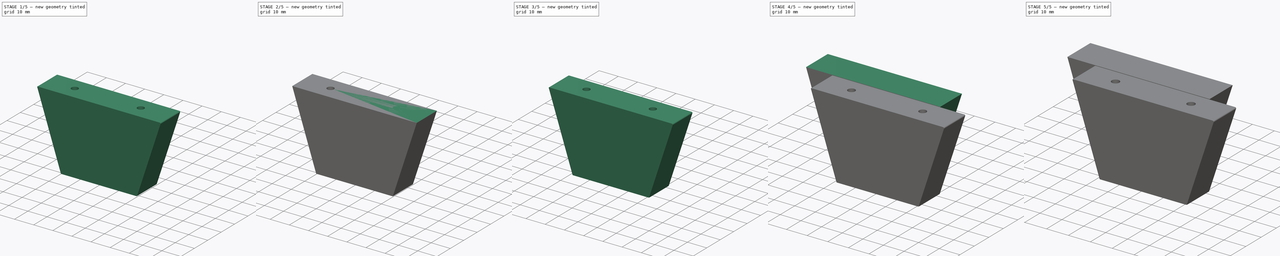
[diagram: build sequence overview — one tinted view per stage of 5, left to right]
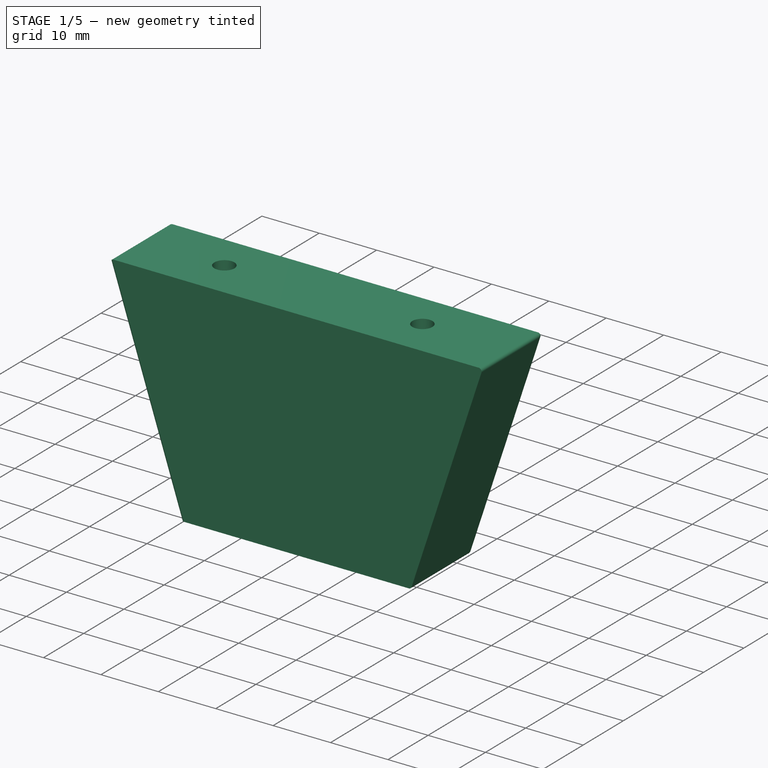
[diagram: stage 1 of 5 — iso view after this stage's code; geometry added in this stage tinted green]
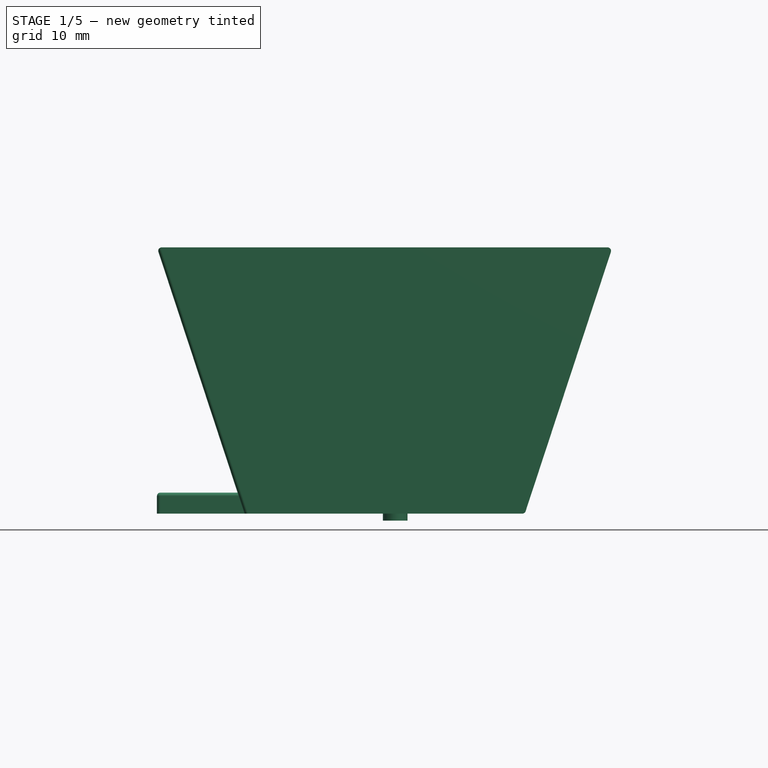
[diagram: stage 1 of 5 — front view after this stage's code; geometry added in this stage tinted green]
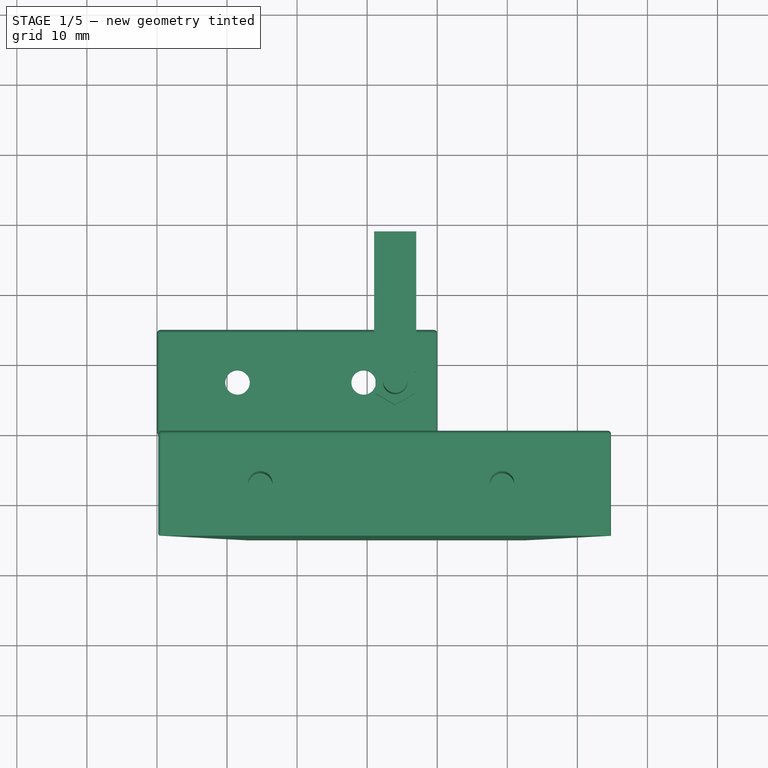
[diagram: stage 1 of 5 — top view after this stage's code; geometry added in this stage tinted green]
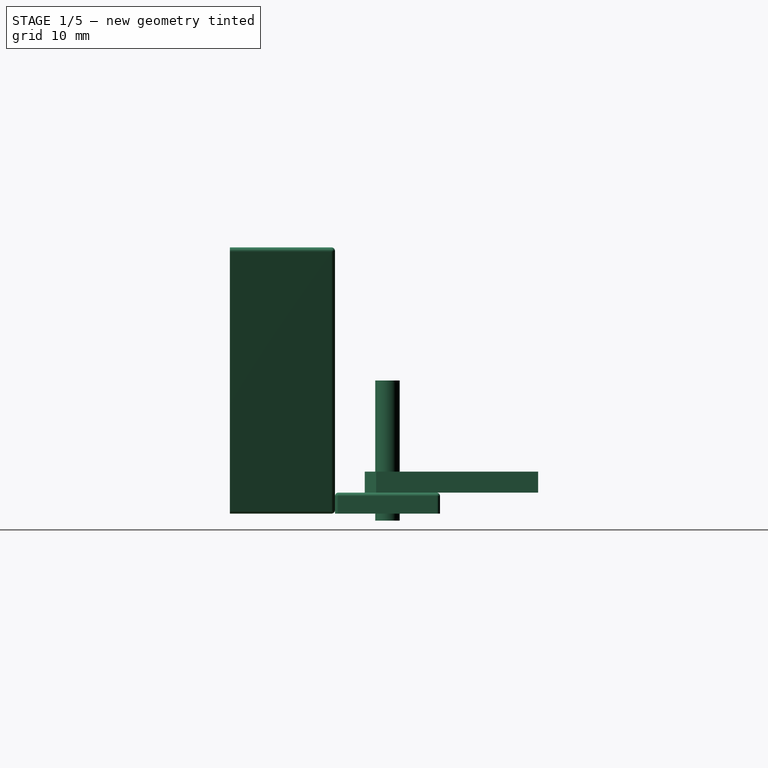
[diagram: stage 1 of 5 — right view after this stage's code; geometry added in this stage tinted green]
FCSTD DOCUMENT  (FreeCAD 0.19R14555 (Git shallow))
Label: Sujetador trasero
License: All rights reserved
LicenseURL: http://en.wikipedia.org/wiki/All_rights_reserved
objects: Part::Cut×14, Part::Cylinder×10, Part::Box×9, Part::Prism×8, Part::MultiFuse×6, Part::Fillet×3, Part::Refine×2, Sketcher::SketchObject×1, PartDesign::Pad×1, PartDesign::Body×1, Part::Feature×1
note: 57 computed .brp shape members not serialized (recipe doc carries the construction recipe); baked Part::Feature solids carry a one-line shape summary decoded from their .brp

FEATURE [Part::Box] Box  label="Cubo"
  AttacherType = Attacher::AttachEngine3D
  Height = 3
  Length = 40
  Width = 15
FEATURE [Part::Cylinder] Cylinder  label="Cilindro"
  Angle = 360
  AttacherType = Attacher::AttachEngine3D
  Height = 10
  Placement = pos=(11.5,7.5,-4) rot=(0,0,1;0rad)
  Radius = 1.75
FEATURE [Part::Cylinder] Cylinder001  label="Cilindro001"
  Angle = 360
  AttacherType = Attacher::AttachEngine3D
  Height = 10
  Placement = pos=(29.5,7.5,-4) rot=(0,0,1;0rad)
  Radius = 1.75
FEATURE [Part::Cut] Cut
  Base = -> Box
  Tool = -> Cylinder
FEATURE [Part::Cut] Cut001  label="Placa sujecion"
  Base = -> Cut
  Tool = -> Cylinder001
FEATURE [Part::Cylinder] Cylinder008  label="Cilindro008"
  Angle = 360
  AttacherType = Attacher::AttachEngine3D
  Height = 20
  Placement = pos=(34,7.5,-1) rot=(0,0,1;0rad)
  Radius = 1.75
FEATURE [Part::Prism] Prism006  label="Prisma006"
  AttacherType = Attacher::AttachEngine3D
  Circumradius = 3.25
  FirstAngle = 0
  Height = 3
  Placement = pos=(34,7.5,3) rot=(0,0,1;1.5708rad)
  Polygon = 6
  SecondAngle = 0
FEATURE [Part::Box] Box007  label="Cubo007"
  AttacherType = Attacher::AttachEngine3D
  Height = 3
  Length = 6
  Placement = pos=(31,9,3) rot=(0,0,1;0rad)
  Width = 20
FEATURE [Part::Fillet] Fillet001
  Base = -> Cut001
  Edges = 8 edges r=0.5: [Edge1,Edge2,Edge3,Edge6,Edge7,Edge8,Edge9,Edge13]
FEATURE [Part::Feature] Cut013001
  shape: bbox 65 x 15 x 38 mm, 74 faces (baked)
FEATURE [Part::Fillet] Fillet002
  Base = -> Cut013001
  Edges = 8 edges r=0.5: [Edge1,Edge2,Edge4,Edge8,Edge9,Edge10,Edge11,Edge30]
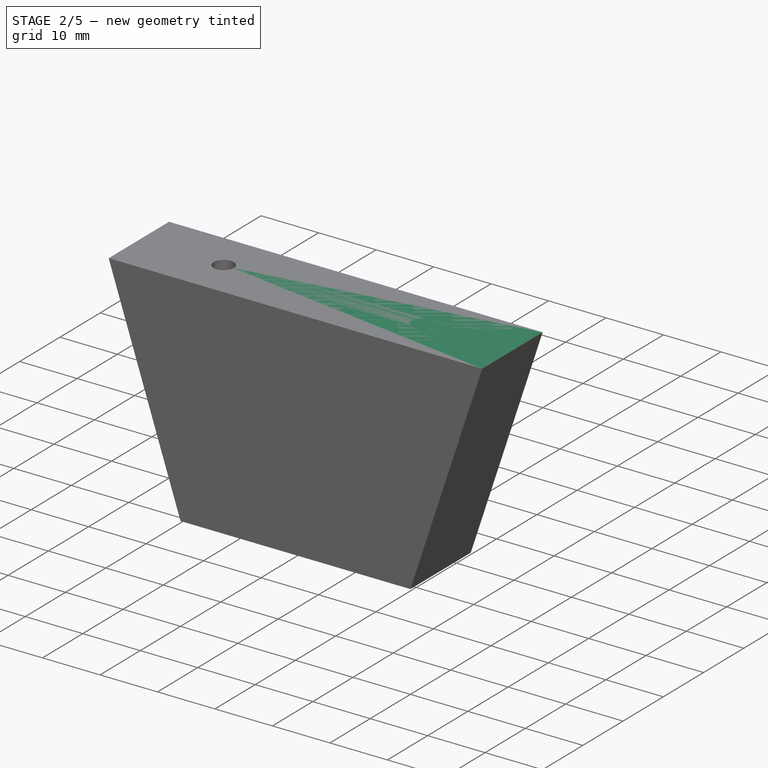
[diagram: stage 2 of 5 — iso view after this stage's code; geometry added in this stage tinted green]
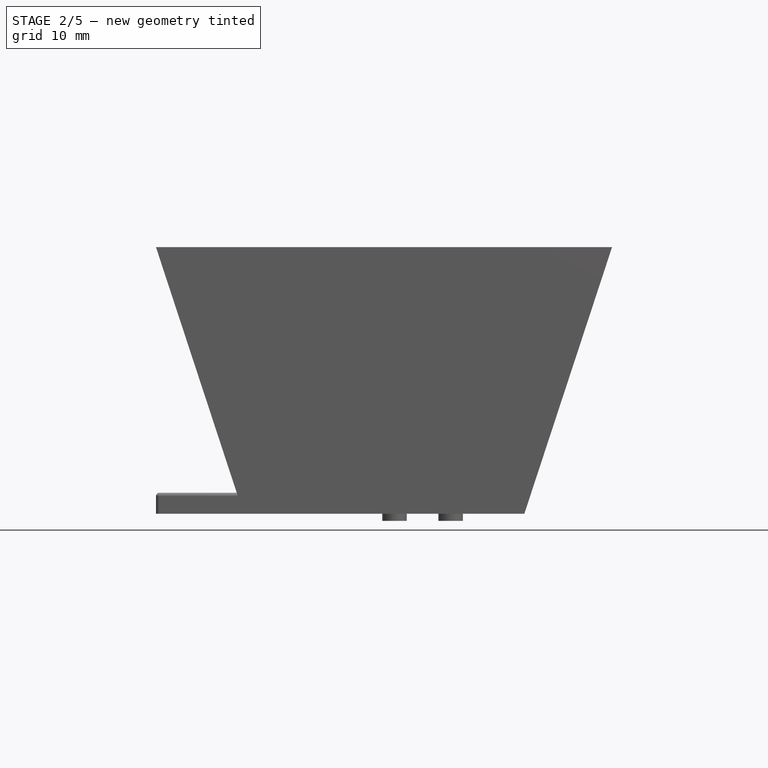
[diagram: stage 2 of 5 — front view after this stage's code; geometry added in this stage tinted green]
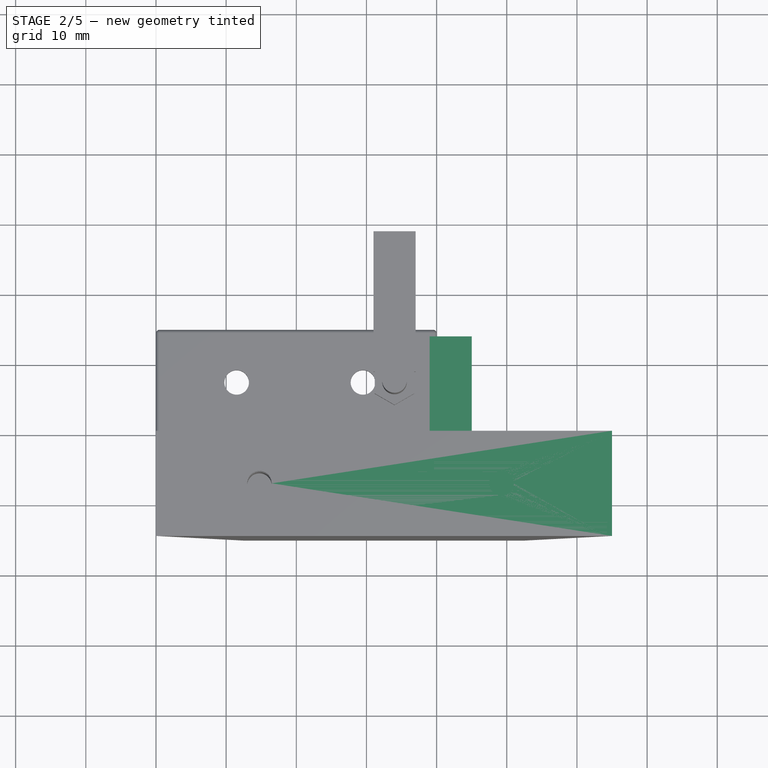
[diagram: stage 2 of 5 — top view after this stage's code; geometry added in this stage tinted green]
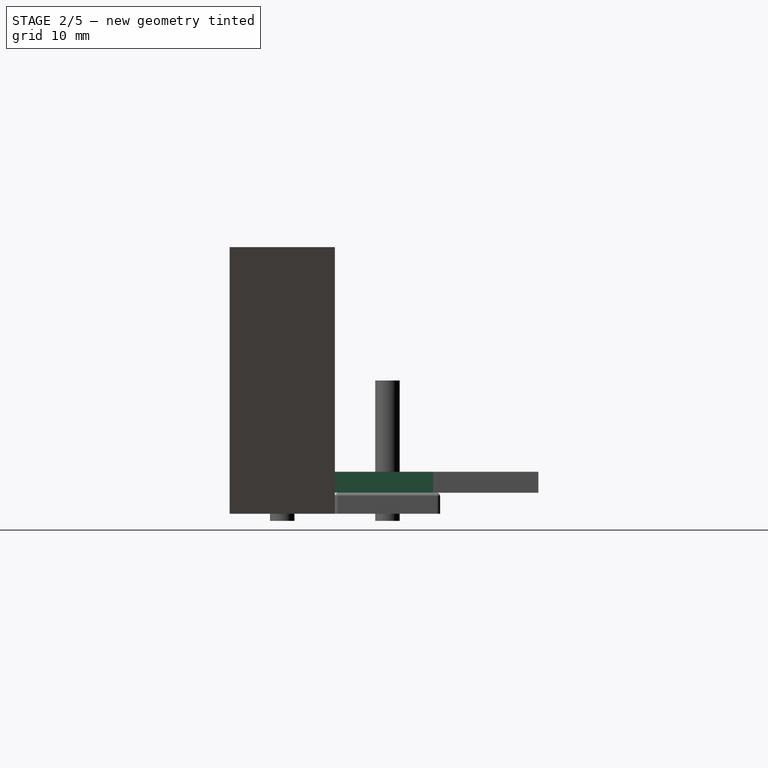
[diagram: stage 2 of 5 — right view after this stage's code; geometry added in this stage tinted green]
FEATURE [Sketcher::SketchObject] Sketch
  FullyConstrained = true
  MapMode = 5
  Placement = pos=(0,0,0) rot=(1,0,0;1.5708rad)
  Support = -> [XZ_Plane]
  sketch-geometry (4):
    g0: LineSegment StartX=0 StartY=38 StartZ=0 EndX=65 EndY=38 EndZ=0
    g1: LineSegment StartX=0 StartY=38 StartZ=0 EndX=12.5 EndY=0 EndZ=0
    g2: LineSegment StartX=12.5 StartY=0 StartZ=0 EndX=52.5 EndY=0 EndZ=0
    g3: LineSegment StartX=65 StartY=38 StartZ=0 EndX=52.5 EndY=0 EndZ=0
  constraints (12):
    c: Horizontal(g2)
    c: Coincident(g3,g2)
    c: Coincident(g2,g1)
    c: Coincident(g0,g1)
    c: Coincident(g3,g0)
    c: Horizontal(g0)
    c: Equal(g1,g3)
    c: DistanceY(g2,g0) = 38
    c: DistanceX(g0,g0) = 65
    c: DistanceX(g2,g2) = 40
    c: PointOnObject(g0,g-2)
    c: PointOnObject(g1,g-1)
FEATURE [PartDesign::Pad] Pad
  Direction = (1,1,1)
  Length = 15
  Length2 = 100
  Placement = pos=(0,0,0) rot=(1,0,0;1.5708rad)
  Profile = -> Sketch
  Type = 0
FEATURE [Part::Refine] Pad002
  Source = -> Pad
FEATURE [Part::Box] Box005  label="Cubo005"
  AttacherType = Attacher::AttachEngine3D
  Height = 3
  Length = 6
  Placement = pos=(31,9,3) rot=(0,0,1;0rad)
  Width = 20
FEATURE [Part::Cylinder] Cylinder006  label="Cilindro006"
  Angle = 360
  AttacherType = Attacher::AttachEngine3D
  Height = 20
  Placement = pos=(34,7.5,-1) rot=(0,0,1;0rad)
  Radius = 1.75
FEATURE [Part::Prism] Prism004  label="Prisma004"
  AttacherType = Attacher::AttachEngine3D
  Circumradius = 3.25
  FirstAngle = 0
  Height = 3
  Placement = pos=(34,7.5,3) rot=(0,0,1;1.5708rad)
  Polygon = 6
  SecondAngle = 0
FEATURE [Part::MultiFuse] Fusion002
  Placement = pos=(48.75,-15,38) rot=(0,1,0;3.14159rad)
  Shapes = -> [Box005,Prism004,Cylinder006]
FEATURE [Part::Cylinder] Cylinder007  label="Cilindro007"
  Angle = 360
  AttacherType = Attacher::AttachEngine3D
  Height = 20
  Placement = pos=(34,7.5,-1) rot=(0,0,1;0rad)
  Radius = 1.75
FEATURE [Part::Prism] Prism005  label="Prisma005"
  AttacherType = Attacher::AttachEngine3D
  Circumradius = 3.25
  FirstAngle = 0
  Height = 3
  Placement = pos=(34,7.5,3) rot=(0,0,1;1.5708rad)
  Polygon = 6
  SecondAngle = 0
FEATURE [Part::Box] Box006  label="Cubo006"
  AttacherType = Attacher::AttachEngine3D
  Height = 3
  Length = 6
  Placement = pos=(31,9,3) rot=(0,0,1;0rad)
  Width = 20
FEATURE [Part::Cut] Cut010
  Base = -> Pad002
  Tool = -> Fusion002
FEATURE [Part::MultiFuse] Fusion004
  Placement = pos=(8,-15,0) rot=(0,1,0;0rad)
  Shapes = -> [Box007,Prism006,Cylinder008]
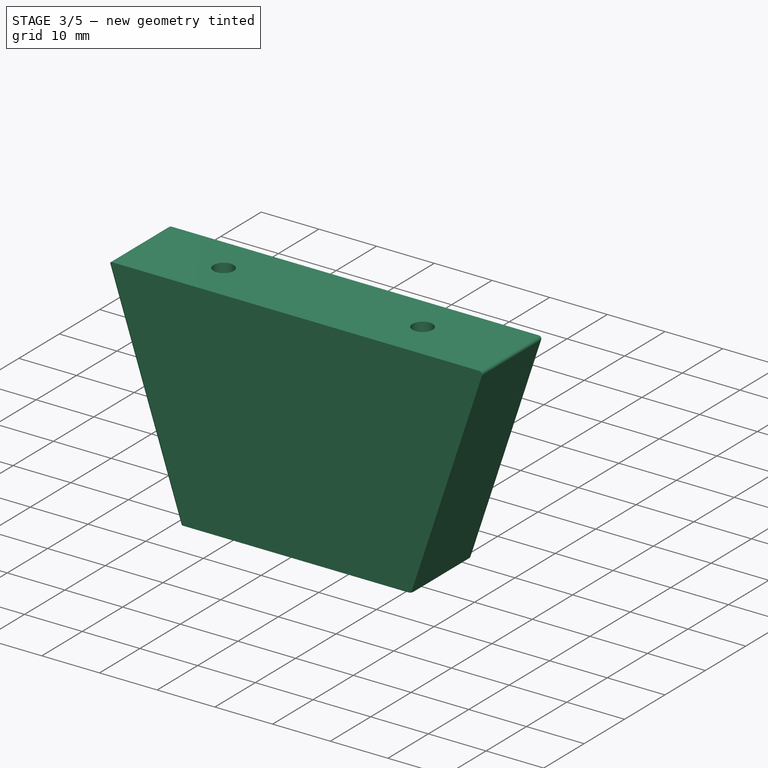
[diagram: stage 3 of 5 — iso view after this stage's code; geometry added in this stage tinted green]
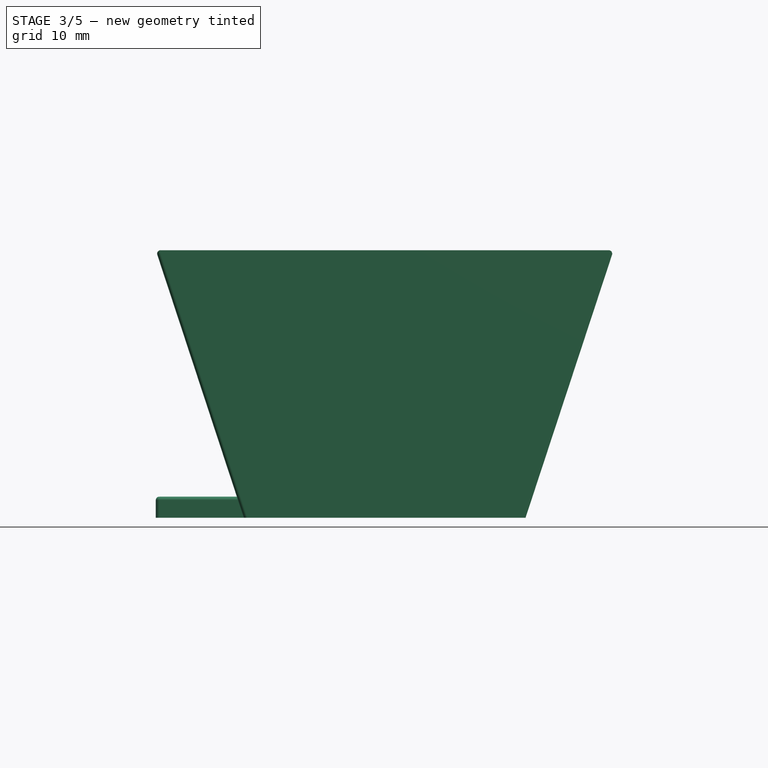
[diagram: stage 3 of 5 — front view after this stage's code; geometry added in this stage tinted green]
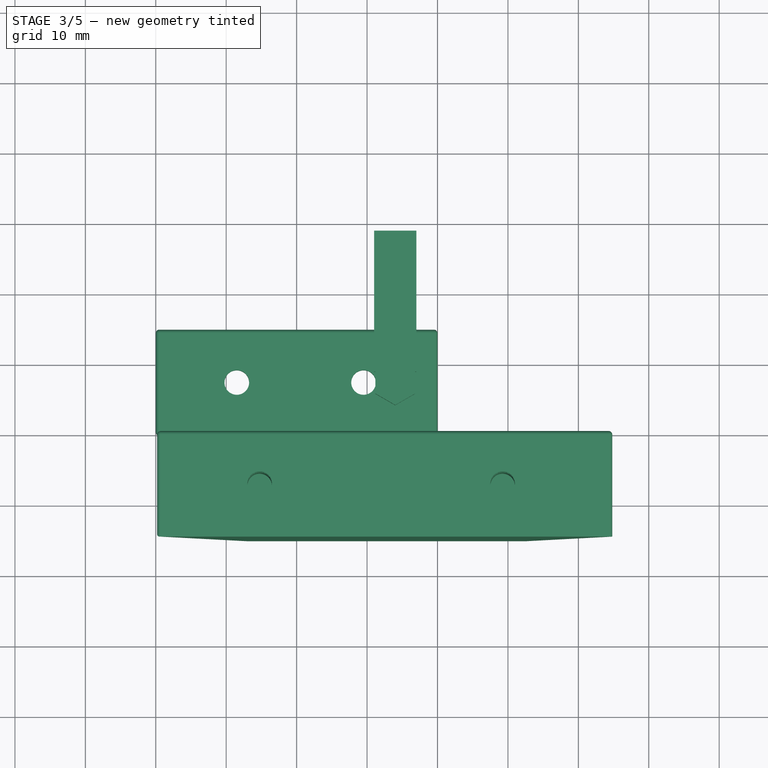
[diagram: stage 3 of 5 — top view after this stage's code; geometry added in this stage tinted green]
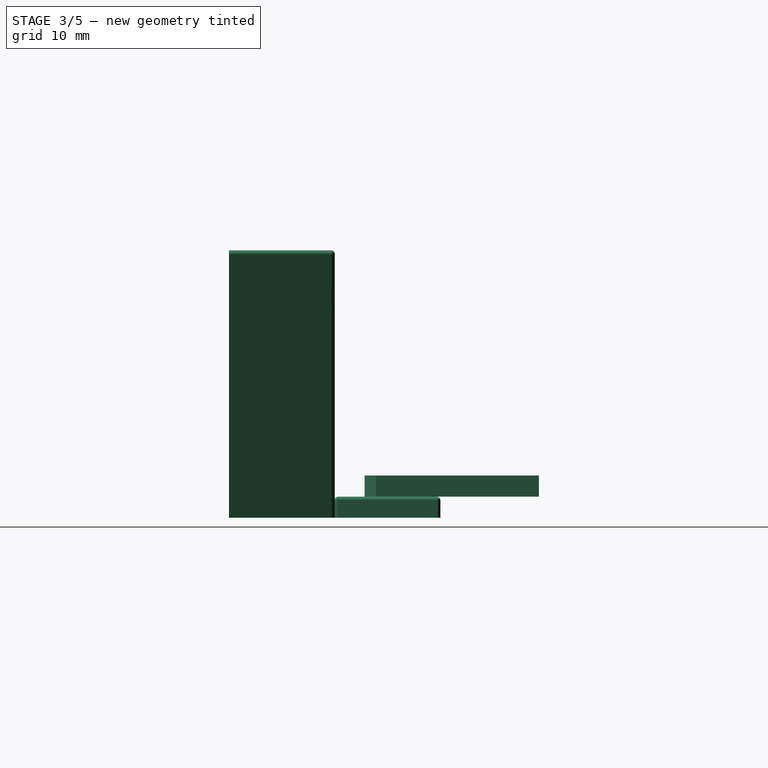
[diagram: stage 3 of 5 — right view after this stage's code; geometry added in this stage tinted green]
FEATURE [Part::Prism] Prism002  label="Prisma002"
  AttacherType = Attacher::AttachEngine3D
  Circumradius = 3.25
  FirstAngle = 0
  Height = 3
  Placement = pos=(34,7.5,3) rot=(0,0,1;1.5708rad)
  Polygon = 6
  SecondAngle = 0
FEATURE [Part::Box] Box003  label="Cubo003"
  AttacherType = Attacher::AttachEngine3D
  Height = 3
  Length = 6
  Placement = pos=(31,9,3) rot=(0,0,1;0rad)
  Width = 20
FEATURE [Part::MultiFuse] Fusion003
  Placement = pos=(83.25,-15,38) rot=(0,1,0;3.14159rad)
  Shapes = -> [Box006,Prism005,Cylinder007]
FEATURE [Part::Cut] Cut011
  Base = -> Cut010
  Tool = -> Fusion003
FEATURE [Part::Prism] Prism007  label="Prisma007"
  AttacherType = Attacher::AttachEngine3D
  Circumradius = 3.25
  FirstAngle = 0
  Height = 3
  Placement = pos=(34,7.5,3) rot=(0,0,1;1.5708rad)
  Polygon = 6
  SecondAngle = 0
FEATURE [Part::Box] Box008  label="Cubo008"
  AttacherType = Attacher::AttachEngine3D
  Height = 3
  Length = 6
  Placement = pos=(31,9,3) rot=(0,0,1;0rad)
  Width = 20
FEATURE [Part::Cylinder] Cylinder009  label="Cilindro009"
  Angle = 360
  AttacherType = Attacher::AttachEngine3D
  Height = 20
  Placement = pos=(34,7.5,-1) rot=(0,0,1;0rad)
  Radius = 1.75
FEATURE [Part::MultiFuse] Fusion005
  Placement = pos=(-10,-15,0) rot=(0,1,0;0rad)
  Shapes = -> [Box008,Prism007,Cylinder009]
FEATURE [Part::Cut] Cut012
  Base = -> Cut011
  Tool = -> Fusion004
FEATURE [Part::Cut] Cut013
  Base = -> Cut012
  Tool = -> Fusion005
FEATURE [Part::Fillet] Fillet
  Base = -> Cut013
  Edges = 8 edges r=0.5: [Edge1,Edge2,Edge3,Edge4,Edge8,Edge9,Edge10,Edge28]
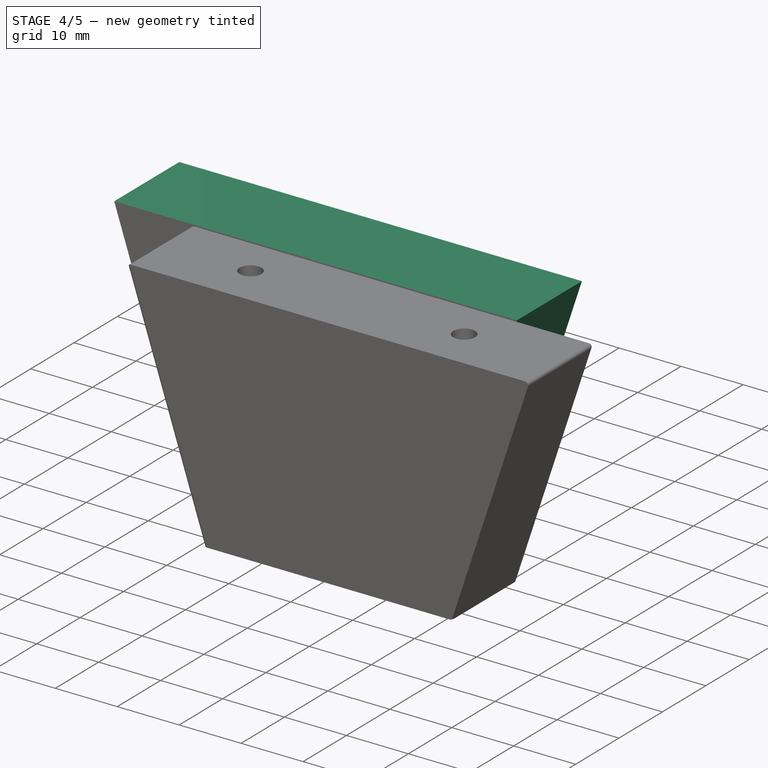
[diagram: stage 4 of 5 — iso view after this stage's code; geometry added in this stage tinted green]
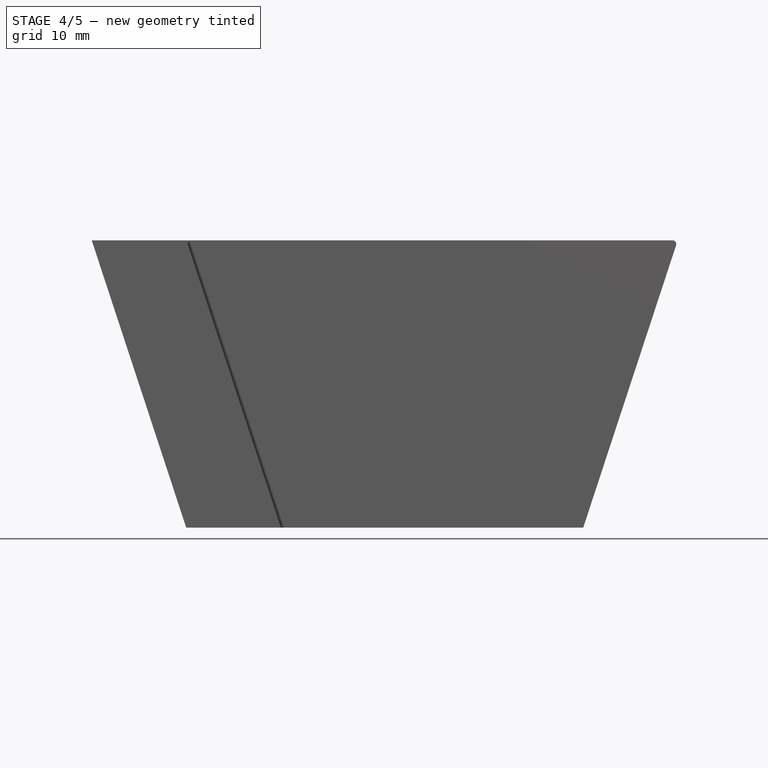
[diagram: stage 4 of 5 — front view after this stage's code; geometry added in this stage tinted green]
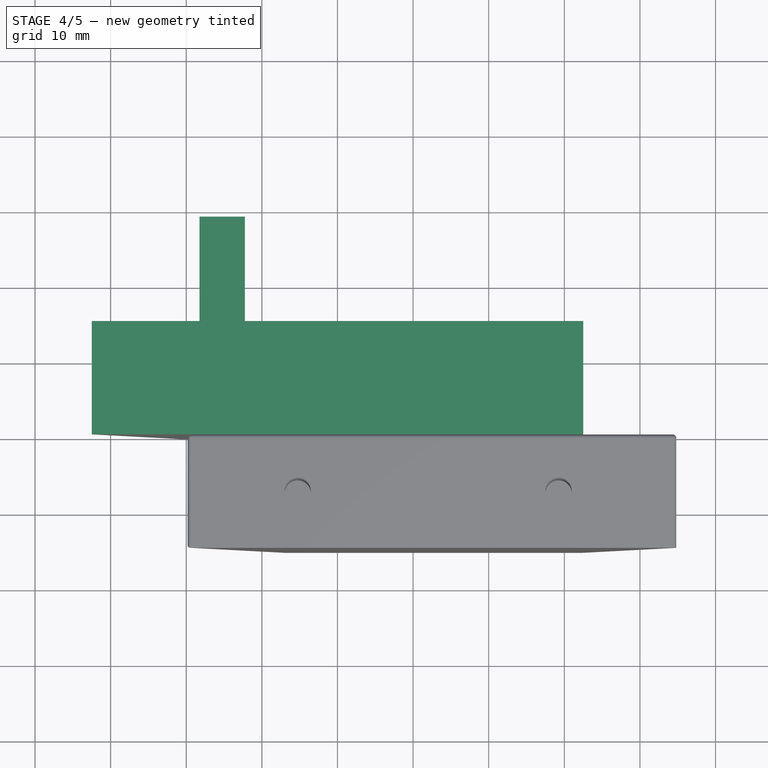
[diagram: stage 4 of 5 — top view after this stage's code; geometry added in this stage tinted green]
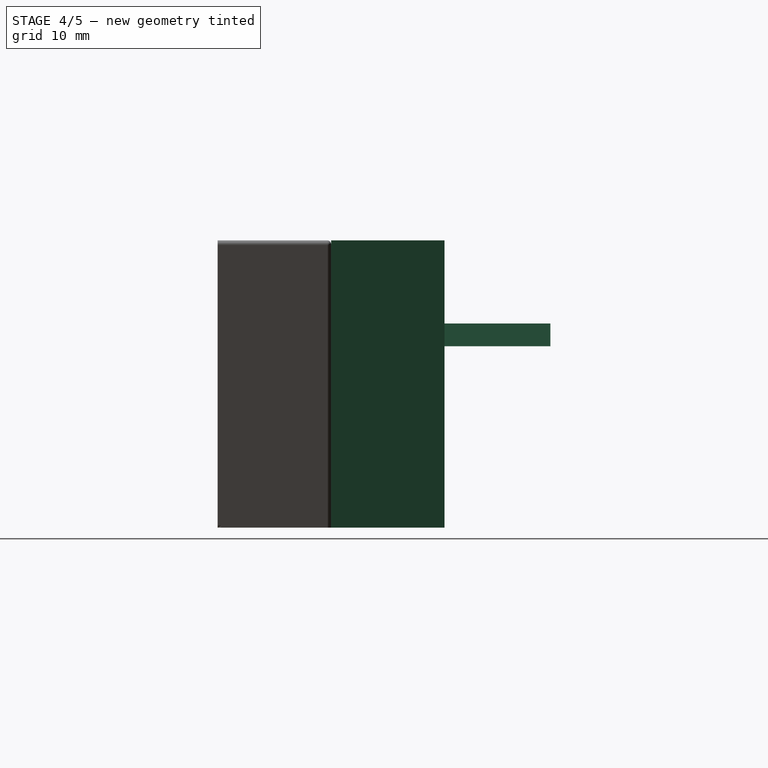
[diagram: stage 4 of 5 — right view after this stage's code; geometry added in this stage tinted green]
FEATURE [PartDesign::Body] Body
  Group = -> [Sketch,Pad]
  Origin = -> Origin
  Tip = -> Pad
FEATURE [Part::Refine] Pad001
  Placement = pos=(-12.5,15,0) rot=(0,0,1;0rad)
  Source = -> Pad
FEATURE [Part::Cylinder] Cylinder002  label="Cilindro002"
  Angle = 360
  AttacherType = Attacher::AttachEngine3D
  Height = 20
  Placement = pos=(34,7.5,-1) rot=(0,0,1;0rad)
  Radius = 1.75
FEATURE [Part::Cylinder] Cylinder003  label="Cilindro003"
  Angle = 360
  AttacherType = Attacher::AttachEngine3D
  Height = 20
  Placement = pos=(6,7.5,-1) rot=(0,0,1;0rad)
  Radius = 1.75
FEATURE [Part::Cut] Cut002
  Base = -> Pad001
  Tool = -> Cylinder002
FEATURE [Part::Cut] Cut003
  Base = -> Cut002
  Tool = -> Cylinder003
FEATURE [Part::Prism] Prism  label="Prisma"
  AttacherType = Attacher::AttachEngine3D
  Circumradius = 3.25
  FirstAngle = 0
  Height = 3
  Placement = pos=(6,7.5,3) rot=(0,0,1;1.5708rad)
  Polygon = 6
  SecondAngle = 0
FEATURE [Part::Prism] Prism001  label="Prisma001"
  AttacherType = Attacher::AttachEngine3D
  Circumradius = 3.25
  FirstAngle = 0
  Height = 3
  Placement = pos=(34,7.5,3) rot=(0,0,1;1.5708rad)
  Polygon = 6
  SecondAngle = 0
FEATURE [Part::Cut] Cut004
  Base = -> Cut003
  Tool = -> Prism
FEATURE [Part::Cut] Cut005
  Base = -> Cut004
  Tool = -> Prism001
FEATURE [Part::Cylinder] Cylinder004  label="Cilindro004"
  Angle = 360
  AttacherType = Attacher::AttachEngine3D
  Height = 20
  Placement = pos=(34,7.5,-1) rot=(0,0,1;0rad)
  Radius = 1.75
FEATURE [Part::MultiFuse] Fusion
  Placement = pos=(38.75,0,30) rot=(0,1,0;3.14159rad)
  Shapes = -> [Box003,Prism002,Cylinder004]
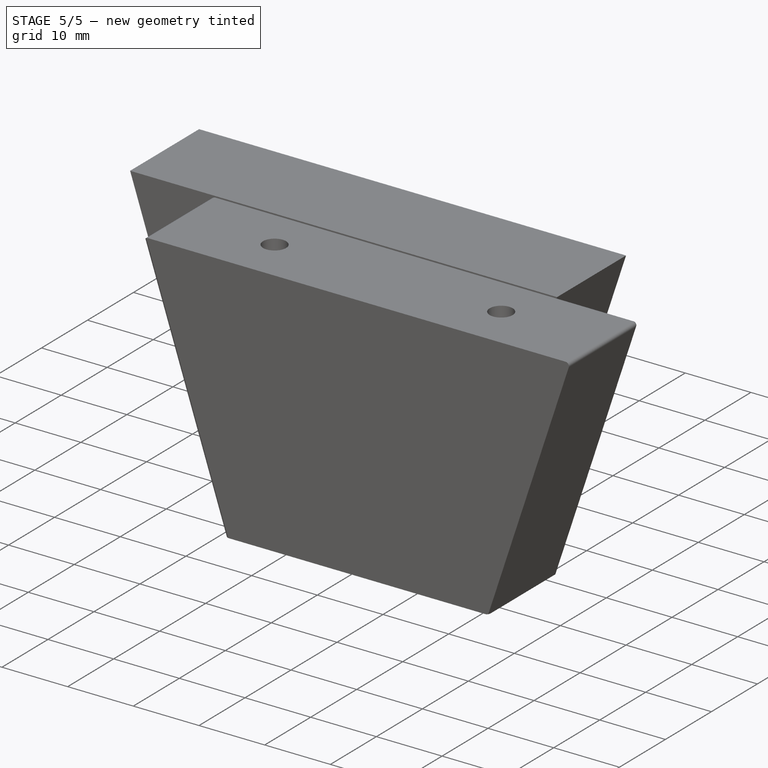
[diagram: stage 5 of 5 — iso view after this stage's code; geometry added in this stage tinted green]
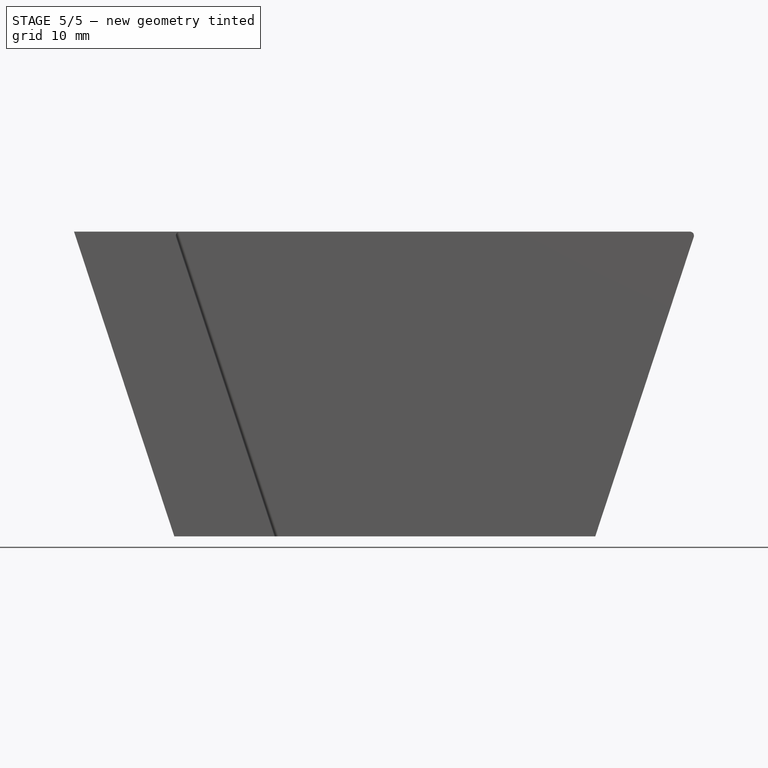
[diagram: stage 5 of 5 — front view after this stage's code; geometry added in this stage tinted green]
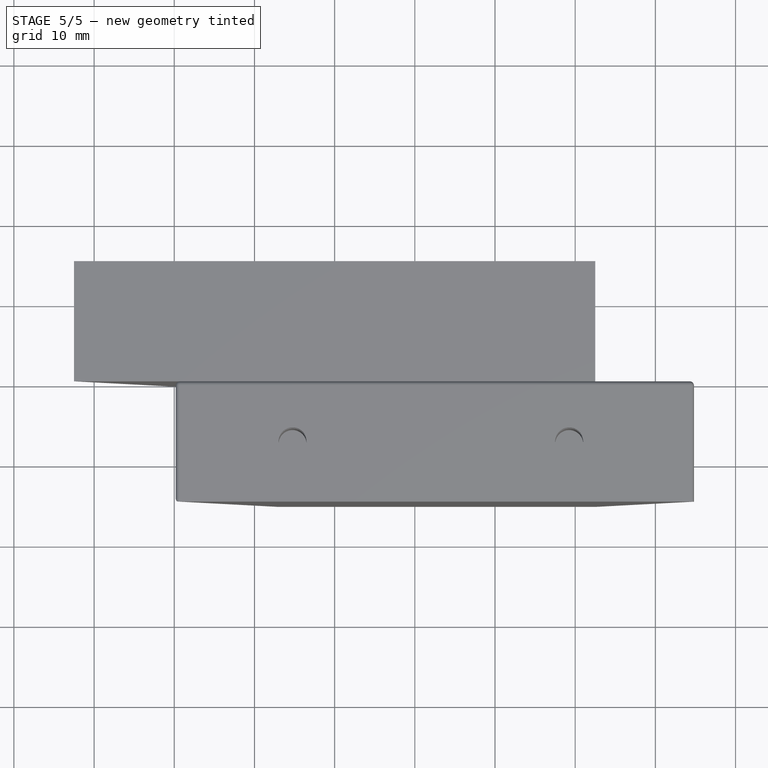
[diagram: stage 5 of 5 — top view after this stage's code; geometry added in this stage tinted green]
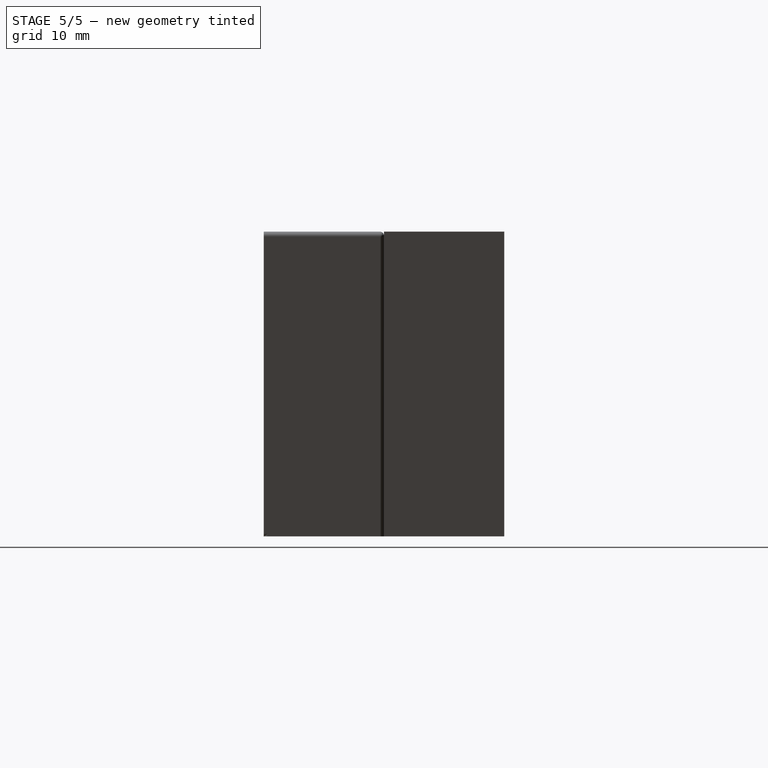
[diagram: stage 5 of 5 — right view after this stage's code; geometry added in this stage tinted green]
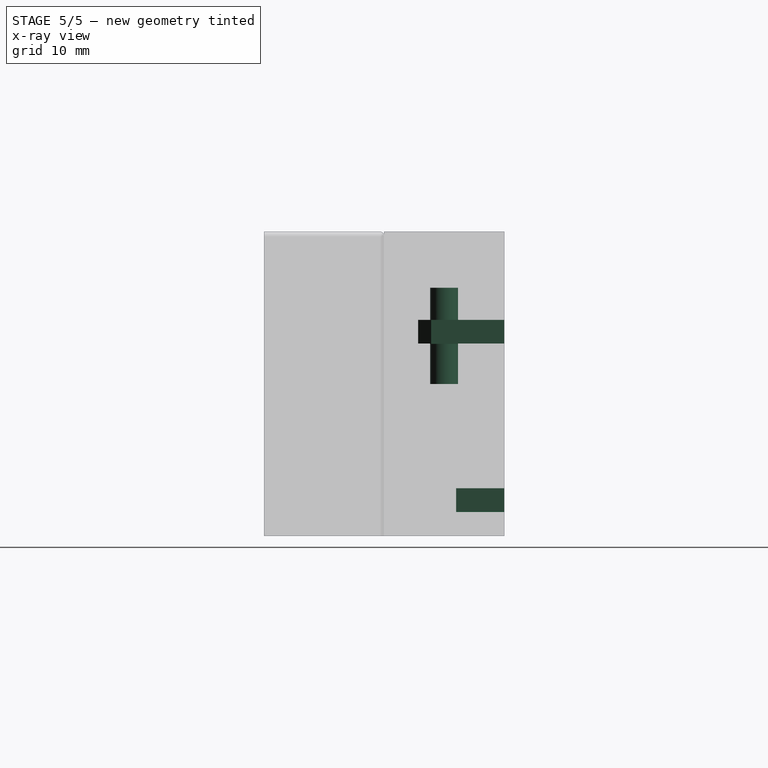
[diagram: stage 5 of 5 — x-ray composite at the right view; earlier geometry ghosted, this stage's added geometry solid]
FEATURE [Part::Box] Box001  label="Cubo001"
  AttacherType = Attacher::AttachEngine3D
  Height = 3
  Length = 6
  Placement = pos=(3,9,3) rot=(0,0,1;0rad)
  Width = 20
FEATURE [Part::Box] Box002  label="Cubo002"
  AttacherType = Attacher::AttachEngine3D
  Height = 3
  Length = 6
  Placement = pos=(31,9,3) rot=(0,0,1;0rad)
  Width = 20
FEATURE [Part::Cut] Cut006
  Base = -> Cut005
  Tool = -> Box001
FEATURE [Part::Cut] Cut007
  Base = -> Cut006
  Tool = -> Box002
FEATURE [Part::Box] Box004  label="Cubo004"
  AttacherType = Attacher::AttachEngine3D
  Height = 3
  Length = 6
  Placement = pos=(31,9,3) rot=(0,0,1;0rad)
  Width = 20
FEATURE [Part::Cylinder] Cylinder005  label="Cilindro005"
  Angle = 360
  AttacherType = Attacher::AttachEngine3D
  Height = 20
  Placement = pos=(34,7.5,-1) rot=(0,0,1;0rad)
  Radius = 1.75
FEATURE [Part::Prism] Prism003  label="Prisma003"
  AttacherType = Attacher::AttachEngine3D
  Circumradius = 3.25
  FirstAngle = 0
  Height = 3
  Placement = pos=(34,7.5,3) rot=(0,0,1;1.5708rad)
  Polygon = 6
  SecondAngle = 0
FEATURE [Part::MultiFuse] Fusion001
  Placement = pos=(68.25,0,30) rot=(0,1,0;3.14159rad)
  Shapes = -> [Box004,Prism003,Cylinder005]
FEATURE [Part::Cut] Cut008
  Base = -> Cut007
  Tool = -> Fusion
FEATURE [Part::Cut] Cut009
  Base = -> Cut008
  Tool = -> Fusion001
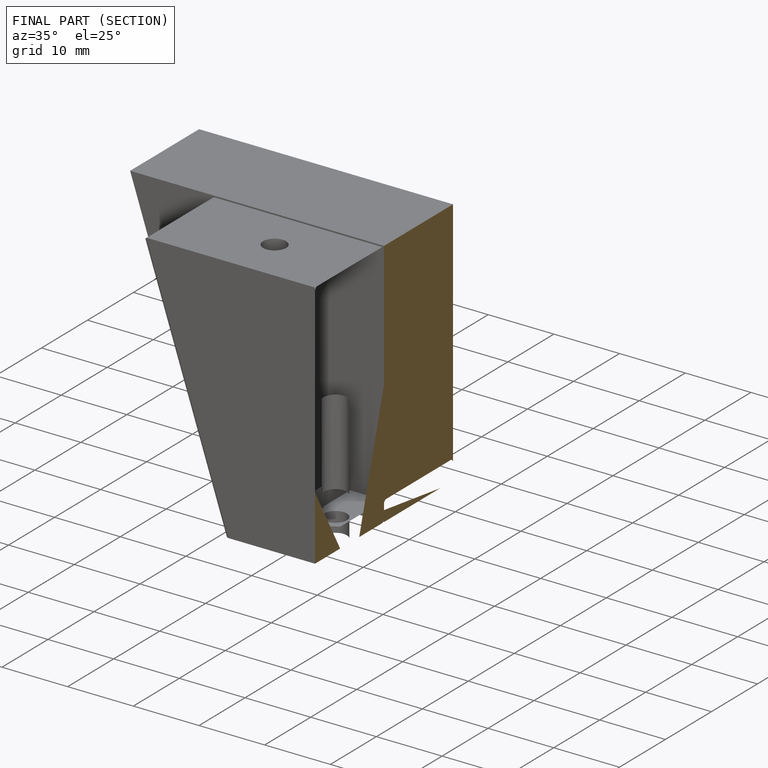
[diagram: finished part — half-section view (interior)]
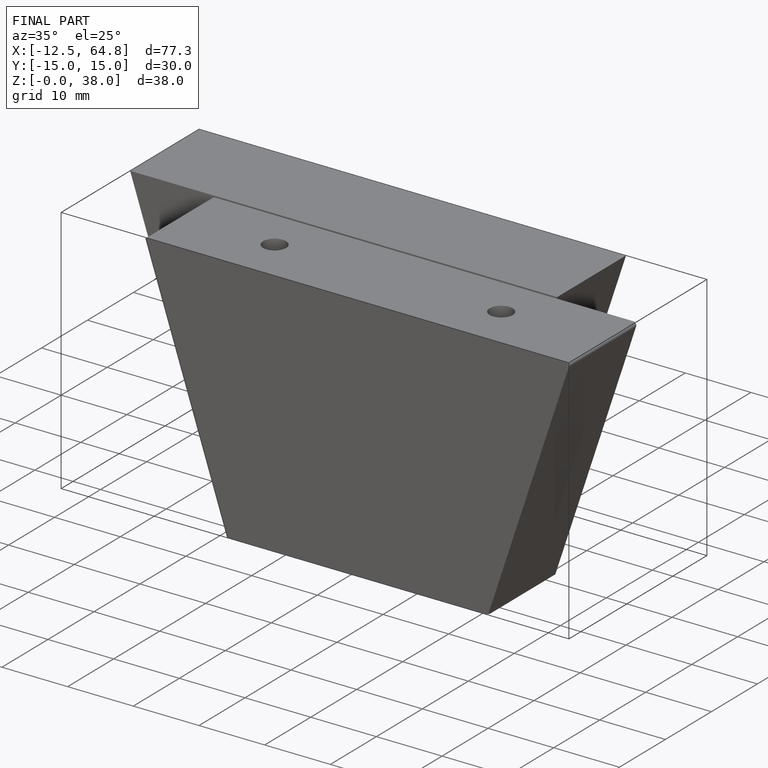
[diagram: finished part — iso view with bounding-box wireframe]
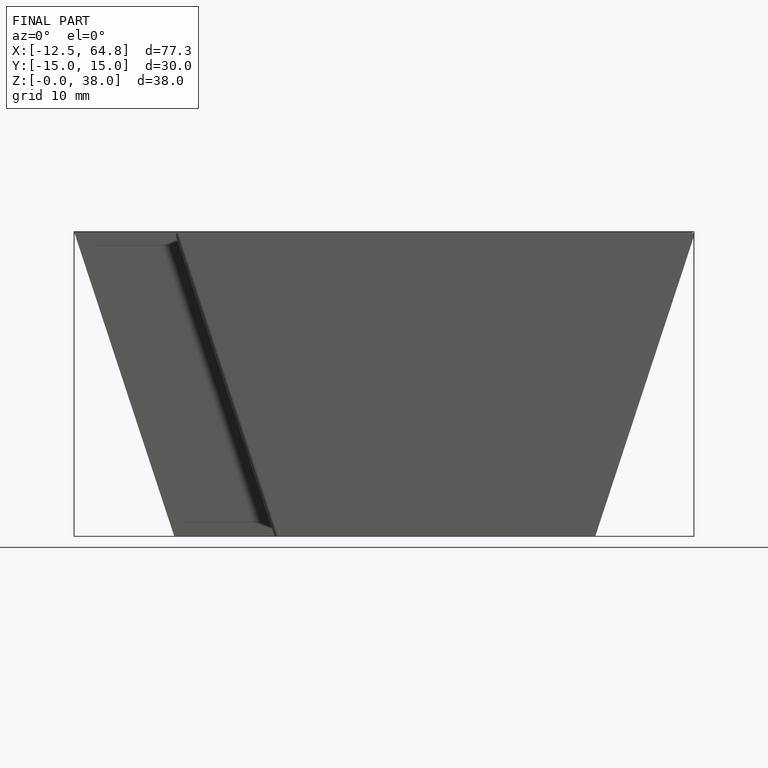
[diagram: finished part — front view with bounding-box wireframe]
